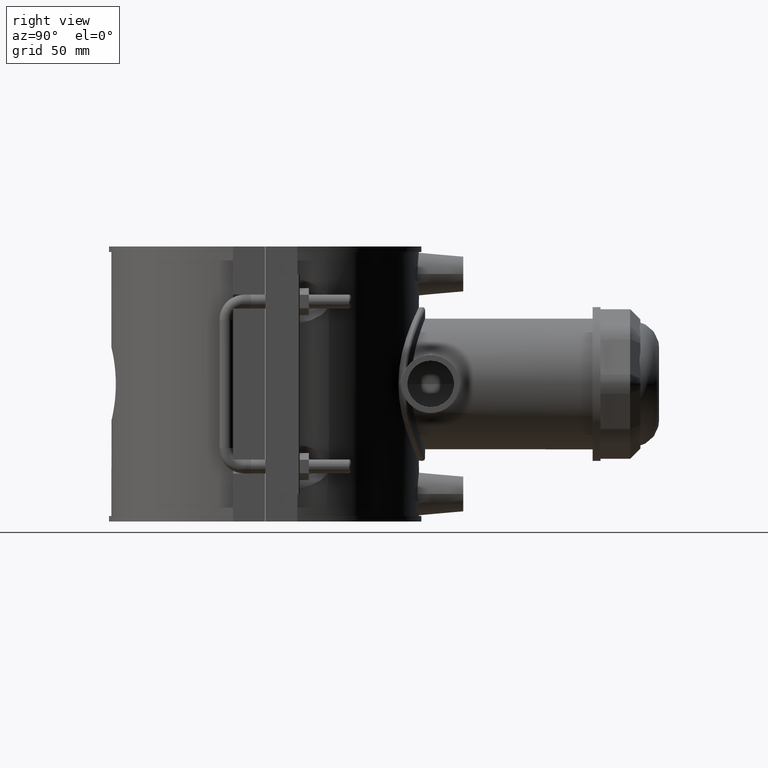
[diagram: clean part render]
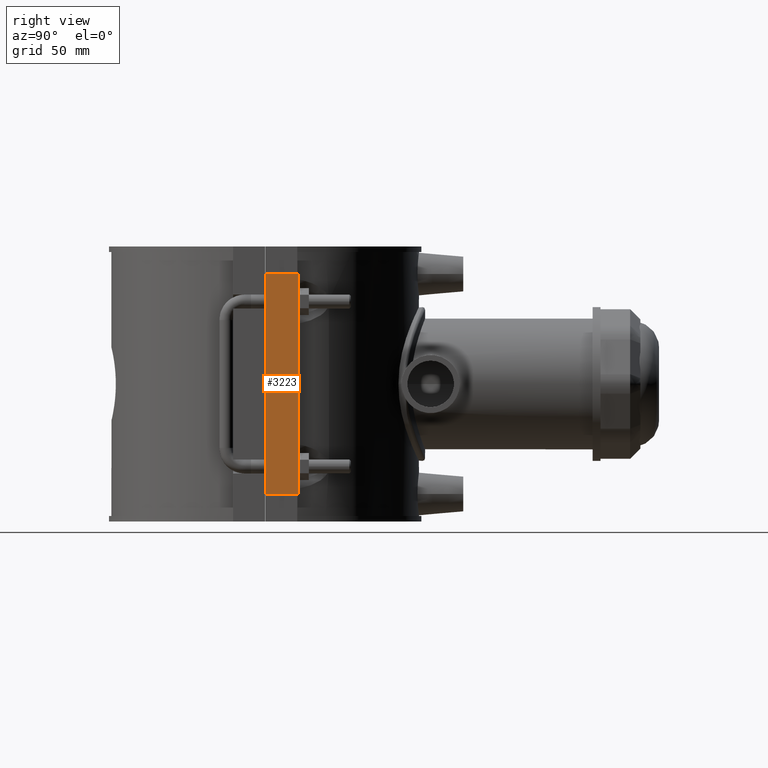
[diagram: same view with one face highlighted and labeled with its STEP entity id]
A machine part, right view. The second image highlights one B-rep face of the part: STEP entity #3223.
In plain terms, the highlighted planar face has unit normal (1, 0, 0).
Its self-contained STEP definition (entity closure, byte-faithful):
#193=LINE('',#5975,#480);
#209=LINE('',#6042,#496);
#212=LINE('',#6048,#499);
#213=LINE('',#6049,#500);
#480=VECTOR('',#4065,94.4);
#496=VECTOR('',#4091,14.2000000000003);
#499=VECTOR('',#4096,14.2000000000003);
#500=VECTOR('',#4097,94.4);
#664=PLANE('',#3475);
#981=FACE_OUTER_BOUND('',#1189,.T.);
#1189=EDGE_LOOP('',(#2621,#2622,#2623,#2624));
#1566=VERTEX_POINT('',#5972);
#1567=VERTEX_POINT('',#5974);
#1585=VERTEX_POINT('',#6041);
#1587=VERTEX_POINT('',#6047);
#1946=EDGE_CURVE('',#1566,#1567,#193,.T.);
#1969=EDGE_CURVE('',#1567,#1585,#209,.T.);
#1972=EDGE_CURVE('',#1587,#1566,#212,.T.);
#1973=EDGE_CURVE('',#1585,#1587,#213,.T.);
#2621=ORIENTED_EDGE('',*,*,#1946,.F.);
#2622=ORIENTED_EDGE('',*,*,#1972,.F.);
#2623=ORIENTED_EDGE('',*,*,#1973,.F.);
#2624=ORIENTED_EDGE('',*,*,#1969,.F.);
#3223=ADVANCED_FACE('',(#981),#664,.T.);
#3475=AXIS2_PLACEMENT_3D('',#6046,#4094,#4095);
#4065=DIRECTION('',(0.,0.,-1.));
#4091=DIRECTION('',(0.,-1.,0.));
#4094=DIRECTION('center_axis',(1.,0.,0.));
#4095=DIRECTION('ref_axis',(0.,1.,0.));
#4096=DIRECTION('',(0.,1.,0.));
#4097=DIRECTION('',(0.,0.,1.));
#5972=CARTESIAN_POINT('',(75.,14.2500000000003,47.2));
#5974=CARTESIAN_POINT('',(75.,14.2500000000003,-47.2));
#5975=CARTESIAN_POINT('',(75.,14.2500000000003,0.));
#6041=CARTESIAN_POINT('',(75.,0.0499999999999989,-47.2));
#6042=CARTESIAN_POINT('',(75.,0.0499999999999989,-47.2));
#6046=CARTESIAN_POINT('Origin',(75.,0.0499999999999991,0.));
#6047=CARTESIAN_POINT('',(75.,0.0499999999999989,47.2));
#6048=CARTESIAN_POINT('',(75.,0.0499999999999989,47.2));
#6049=CARTESIAN_POINT('',(75.,0.0499999999999991,0.));